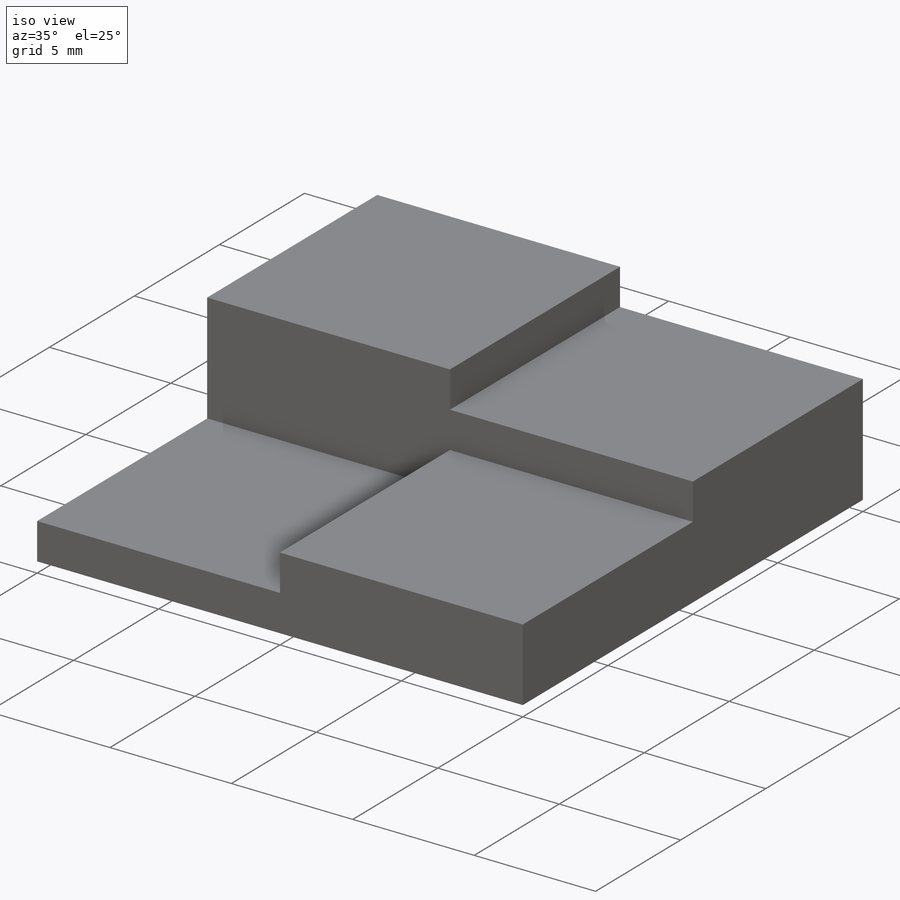
[diagram: iso view]
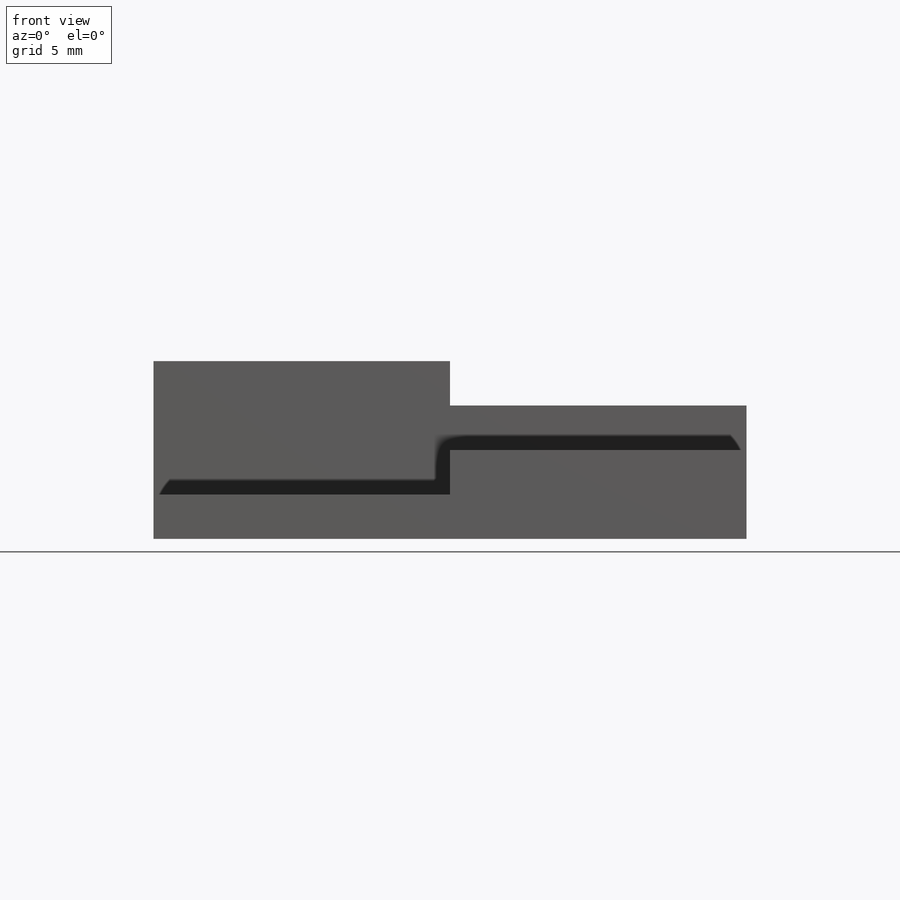
[diagram: front view]
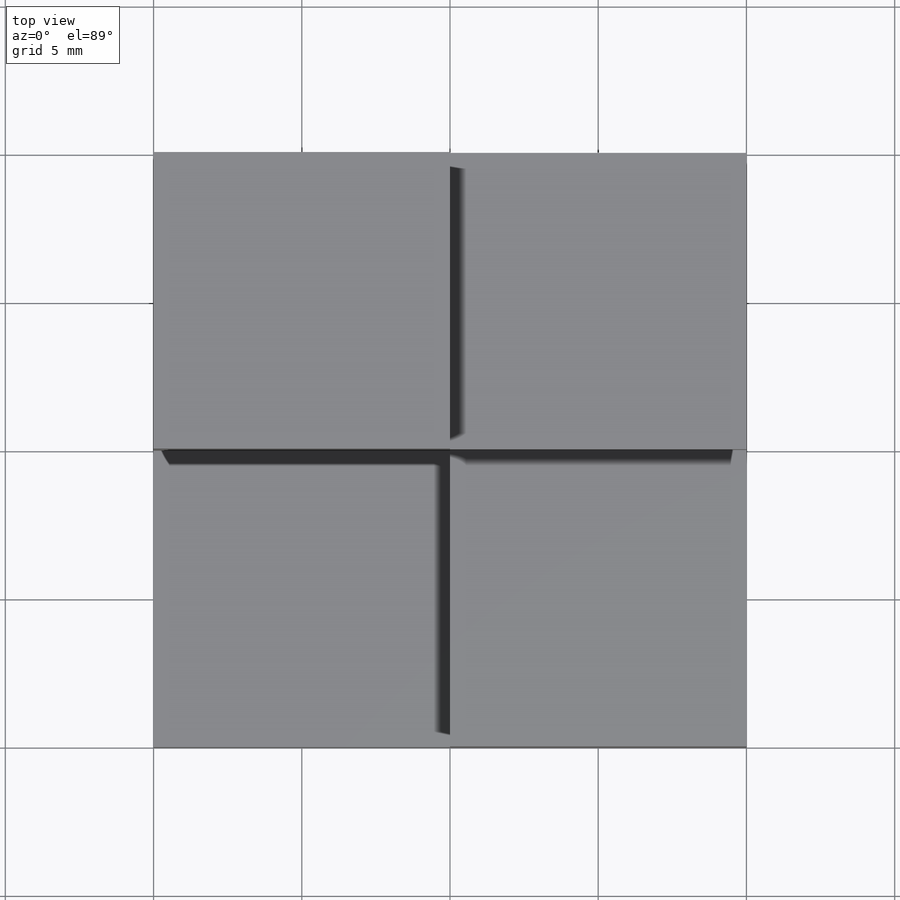
[diagram: top view]
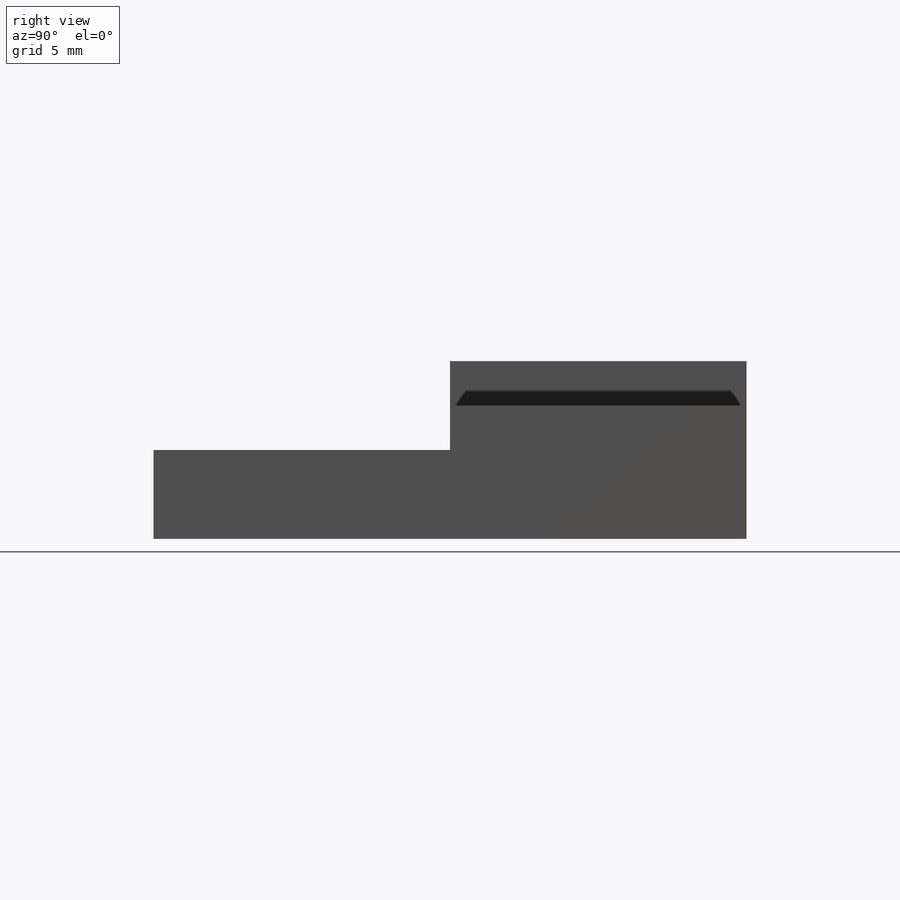
[diagram: right view]
SOLIDWORKS PART (.sldprt)
format: sldprt  version: not decoded by parser v0  size: 193,536 bytes
history: native  units: mm
features: sketch x8, extrude x4, material x1 (+16 scaffold rows collapsed)
feature tree (29):
  scaffold x16  (default folders/planes/origin — collapsed)
  material  "Material <not specified>"
  sketch  "Sketch1"  dims[D1=20.0mm D2=20.0mm]
  extrude  "Extrude1"  Depth=1.5mm
  sketch  "Sketch2"
  extrude  "Extrude2"  Depth=3mm
  sketch  "Sketch3"
  extrude  "Extrude3"  Depth=1.5mm
  sketch  "Sketch4"
  extrude  "Extrude4"  Depth=1.5mm
  sketch  "Sketch6"
  sketch  "Sketch8"
  sketch  "Sketch10"
  sketch  "Sketch11"
decode coverage: 5 of 12 modeling features carry decoded parameters
note: suppression state not decoded; provenance and decode notes live in map.json
